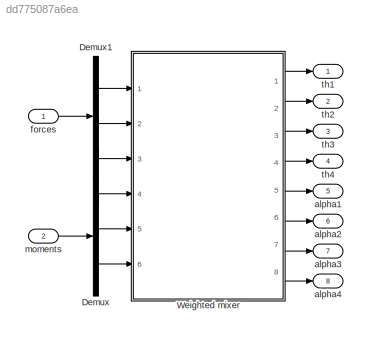
MODEL slx_dd775087a6ea
KIND model
CONFIG AbsTol = auto
CONFIG EnableMultiTasking = on
CONFIG FixedStep = sample_time
CONFIG InitFcn = Parameters_physical_tiltrotor\nParameters_controllers_tiltrotor
CONFIG MaxStep = auto
CONFIG MinStep = auto
CONFIG RelTol = 1e-3
CONFIG SampleTimeConstraint = Unconstrained
CONFIG Solver = ode2
CONFIG SolverName = ode2
CONFIG StartTime = 0.0
CONFIG StopTime = 10.0
BLOCK [Demux] Demux
  DisplayOption = bar
  Outputs = 3
  Ports = [1, 3]
BLOCK [Demux] Demux1
  DisplayOption = bar
  Outputs = 3
  Ports = [1, 3]
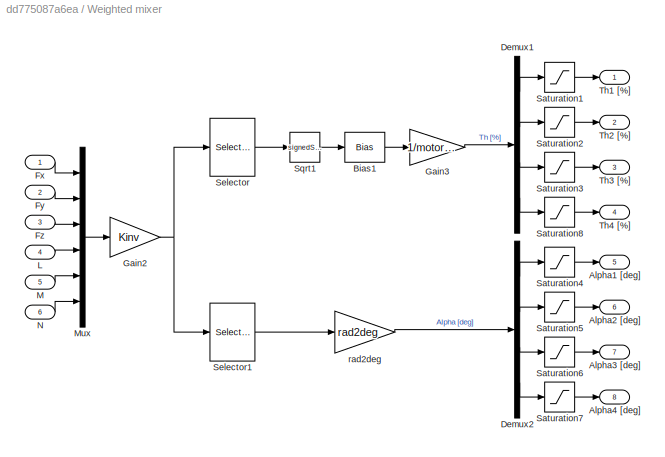
BLOCK [SubSystem] Weighted mixer
  Ports = [6, 8]
  RequestExecContextInheritance = off
  Variant = off
BLOCK [Outport] Weighted mixer/Alpha1 [deg]
  IconDisplay = Port number
  Port = 5
BLOCK [Outport] Weighted mixer/Alpha2 [deg]
  IconDisplay = Port number
  Port = 6
BLOCK [Outport] Weighted mixer/Alpha3 [deg]
  IconDisplay = Port number
  Port = 7
BLOCK [Outport] Weighted mixer/Alpha4 [deg]
  IconDisplay = Port number
  Port = 8
BLOCK [Bias] Weighted mixer/Bias1
  Bias = -motor_ome_vs_throttle(2)
  SaturateOnIntegerOverflow = off
BLOCK [Demux] Weighted mixer/Demux1
  DisplayOption = bar
  Ports = [1, 4]
BLOCK [Demux] Weighted mixer/Demux2
  DisplayOption = bar
  Ports = [1, 4]
BLOCK [Inport] Weighted mixer/Fx
  IconDisplay = Port number
BLOCK [Inport] Weighted mixer/Fy
  IconDisplay = Port number
  Port = 2
BLOCK [Inport] Weighted mixer/Fz
  IconDisplay = Port number
  Port = 3
BLOCK [Gain] Weighted mixer/Gain2
  Gain = Kinv
  Multiplication = Matrix(K*u)
  OutDataTypeStr = Inherit: Inherit via internal rule
  ParamDataTypeStr = Inherit: Inherit via internal rule
  SaturateOnIntegerOverflow = off
BLOCK [Gain] Weighted mixer/Gain3
  Gain = 1/motor_ome_vs_throttle(1)
  OutDataTypeStr = Inherit: Inherit via internal rule
  ParamDataTypeStr = Inherit: Inherit via internal rule
  SaturateOnIntegerOverflow = off
BLOCK [Inport] Weighted mixer/L
  IconDisplay = Port number
  Port = 4
BLOCK [Inport] Weighted mixer/M
  IconDisplay = Port number
  Port = 5
BLOCK [Mux] Weighted mixer/Mux
  DisplayOption = bar
  Inputs = 6
  Ports = [6, 1]
BLOCK [Inport] Weighted mixer/N
  IconDisplay = Port number
  Port = 6
BLOCK [Saturate] Weighted mixer/Saturation1
  InputPortMap = u0
  LowerLimit = 0
  Ports = [1, 1]
  UpperLimit = 100
BLOCK [Saturate] Weighted mixer/Saturation2
  InputPortMap = u0
  LowerLimit = 0
  Ports = [1, 1]
  UpperLimit = 100
BLOCK [Saturate] Weighted mixer/Saturation3
  InputPortMap = u0
  LowerLimit = 0
  Ports = [1, 1]
  UpperLimit = 100
BLOCK [Saturate] Weighted mixer/Saturation4
  InputPortMap = u0
  LowerLimit = -45
  Ports = [1, 1]
  UpperLimit = 45
BLOCK [Saturate] Weighted mixer/Saturation5
  InputPortMap = u0
  LowerLimit = -45
  Ports = [1, 1]
  UpperLimit = 45
BLOCK [Saturate] Weighted mixer/Saturation6
  InputPortMap = u0
  LowerLimit = -45
  Ports = [1, 1]
  UpperLimit = 45
BLOCK [Saturate] Weighted mixer/Saturation7
  InputPortMap = u0
  LowerLimit = -45
  Ports = [1, 1]
  UpperLimit = 45
BLOCK [Saturate] Weighted mixer/Saturation8
  InputPortMap = u0
  LowerLimit = 0
  Ports = [1, 1]
  UpperLimit = 100
BLOCK [Selector] Weighted mixer/Selector
  IndexOptions = Index vector (dialog)
  Indices = [1 2 3 4]
  InputPortWidth = 8
  OutputSizes = 1
  Ports = [1, 1]
BLOCK [Selector] Weighted mixer/Selector1
  IndexOptions = Index vector (dialog)
  Indices = [5 6 7 8]
  InputPortWidth = 8
  OutputSizes = 1
  Ports = [1, 1]
BLOCK [Sqrt] Weighted mixer/Sqrt1
  Operator = signedSqrt
BLOCK [Outport] Weighted mixer/Th1 [%]
  IconDisplay = Port number
BLOCK [Outport] Weighted mixer/Th2 [%]
  IconDisplay = Port number
  Port = 2
BLOCK [Outport] Weighted mixer/Th3 [%]
  IconDisplay = Port number
  Port = 3
BLOCK [Outport] Weighted mixer/Th4 [%]
  IconDisplay = Port number
  Port = 4
BLOCK [Gain] Weighted mixer/rad2deg
  Gain = rad2deg
  OutDataTypeStr = Inherit: Inherit via internal rule
  ParamDataTypeStr = Inherit: Inherit via internal rule
  SaturateOnIntegerOverflow = off
BLOCK [Outport] alpha1
  IconDisplay = Port number
  Port = 5
BLOCK [Outport] alpha2
  IconDisplay = Port number
  Port = 6
BLOCK [Outport] alpha3
  IconDisplay = Port number
  Port = 7
BLOCK [Outport] alpha4
  IconDisplay = Port number
  Port = 8
BLOCK [Inport] forces
  IconDisplay = Port number
BLOCK [Inport] moments
  IconDisplay = Port number
  Port = 2
BLOCK [Outport] th1
  IconDisplay = Port number
BLOCK [Outport] th2
  IconDisplay = Port number
  Port = 2
BLOCK [Outport] th3
  IconDisplay = Port number
  Port = 3
BLOCK [Outport] th4
  IconDisplay = Port number
  Port = 4
LINE Demux1:1 -> Weighted mixer:1
LINE Demux1:2 -> Weighted mixer:2
LINE Demux1:3 -> Weighted mixer:3
LINE Demux:1 -> Weighted mixer:4
LINE Demux:2 -> Weighted mixer:5
LINE Demux:3 -> Weighted mixer:6
LINE Weighted mixer/Bias1:1 -> Weighted mixer/Gain3:1
LINE Weighted mixer/Demux1:1 -> Weighted mixer/Saturation1:1
LINE Weighted mixer/Demux1:2 -> Weighted mixer/Saturation2:1
LINE Weighted mixer/Demux1:3 -> Weighted mixer/Saturation3:1
LINE Weighted mixer/Demux1:4 -> Weighted mixer/Saturation8:1
LINE Weighted mixer/Demux2:1 -> Weighted mixer/Saturation4:1
LINE Weighted mixer/Demux2:2 -> Weighted mixer/Saturation5:1
LINE Weighted mixer/Demux2:3 -> Weighted mixer/Saturation6:1
LINE Weighted mixer/Demux2:4 -> Weighted mixer/Saturation7:1
LINE Weighted mixer/Fx:1 -> Weighted mixer/Mux:1
LINE Weighted mixer/Fy:1 -> Weighted mixer/Mux:2
LINE Weighted mixer/Fz:1 -> Weighted mixer/Mux:3
NET Weighted mixer/Gain2:1 -> Weighted mixer/Selector1:1, Weighted mixer/Selector:1
LINE Weighted mixer/Gain3:1 -> Weighted mixer/Demux1:1
LINE Weighted mixer/L:1 -> Weighted mixer/Mux:4
LINE Weighted mixer/M:1 -> Weighted mixer/Mux:5
LINE Weighted mixer/Mux:1 -> Weighted mixer/Gain2:1
LINE Weighted mixer/N:1 -> Weighted mixer/Mux:6
LINE Weighted mixer/Saturation1:1 -> Weighted mixer/Th1 [%]:1
LINE Weighted mixer/Saturation2:1 -> Weighted mixer/Th2 [%]:1
LINE Weighted mixer/Saturation3:1 -> Weighted mixer/Th3 [%]:1
LINE Weighted mixer/Saturation4:1 -> Weighted mixer/Alpha1 [deg]:1
LINE Weighted mixer/Saturation5:1 -> Weighted mixer/Alpha2 [deg]:1
LINE Weighted mixer/Saturation6:1 -> Weighted mixer/Alpha3 [deg]:1
LINE Weighted mixer/Saturation7:1 -> Weighted mixer/Alpha4 [deg]:1
LINE Weighted mixer/Saturation8:1 -> Weighted mixer/Th4 [%]:1
LINE Weighted mixer/Selector1:1 -> Weighted mixer/rad2deg:1
LINE Weighted mixer/Selector:1 -> Weighted mixer/Sqrt1:1
LINE Weighted mixer/Sqrt1:1 -> Weighted mixer/Bias1:1
LINE Weighted mixer/rad2deg:1 -> Weighted mixer/Demux2:1
LINE Weighted mixer:1 -> th1:1
LINE Weighted mixer:2 -> th2:1
LINE Weighted mixer:3 -> th3:1
LINE Weighted mixer:4 -> th4:1
LINE Weighted mixer:5 -> alpha1:1
LINE Weighted mixer:6 -> alpha2:1
LINE Weighted mixer:7 -> alpha3:1
LINE Weighted mixer:8 -> alpha4:1
LINE forces:1 -> Demux1:1
LINE moments:1 -> Demux:1
note: NET lines group one-source signal fan-out (src -> all destinations, sorted); 1:1 wires keep LINE
